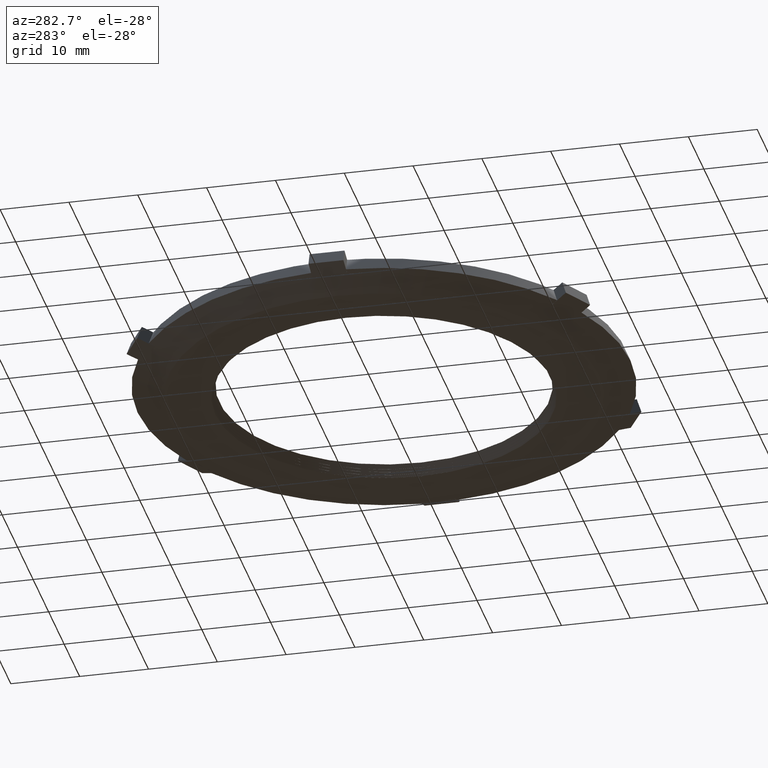
[diagram: clean part render]
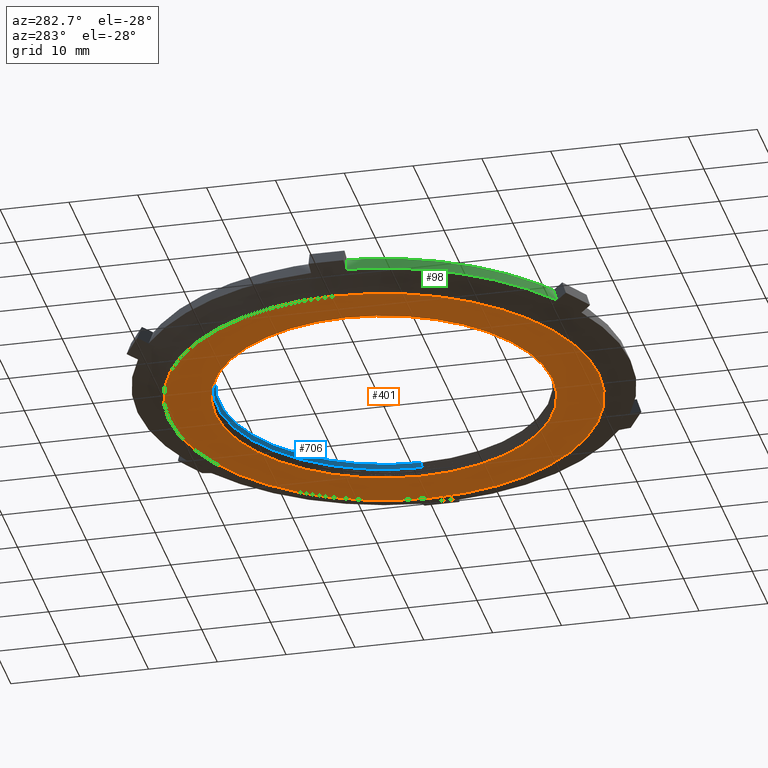
[diagram: same view with three faces highlighted in distinct colors, each labeled with its STEP entity id]
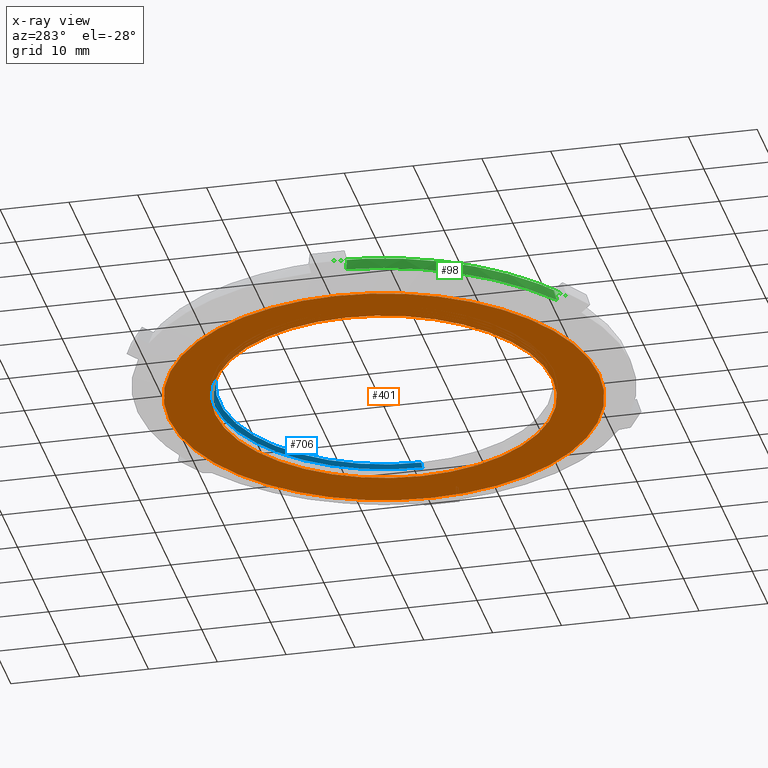
[diagram: x-ray of the same camera — body ghosted, the three highlighted faces saturated]
A machine part, auxiliary view with three faces highlighted in distinct colors.
The next image is the same camera in x-ray (body ghosted, the three faces saturated) — at least one of them is partly hidden behind the body in this view.
Their STEP definitions:

[orange] entity #401 — the highlighted planar face has unit normal (0, 0, 1).
#19 = VERTEX_POINT ( 'NONE', #777 ) ;
#21 = VERTEX_POINT ( 'NONE', #772 ) ;
#24 = EDGE_CURVE ( 'NONE', #19, #21, #769, .T. ) ;
#136 = EDGE_CURVE ( 'NONE', #137, #138, #1035, .T. ) ;
#137 = VERTEX_POINT ( 'NONE', #1067 ) ;
#138 = VERTEX_POINT ( 'NONE', #1083 ) ;
#216 = EDGE_CURVE ( 'NONE', #21, #19, #1601, .T. ) ;
#287 = EDGE_LOOP ( 'NONE', ( #288, #289 ) ) ;
#288 = ORIENTED_EDGE ( 'NONE', *, *, #216, .T. ) ;
#289 = ORIENTED_EDGE ( 'NONE', *, *, #24, .T. ) ;
#401 = ADVANCED_FACE ( 'NONE', ( #1499, #1507 ), #1506, .F. ) ;
#407 = ORIENTED_EDGE ( 'NONE', *, *, #136, .T. ) ;
#411 = ORIENTED_EDGE ( 'NONE', *, *, #443, .T. ) ;
#442 = EDGE_LOOP ( 'NONE', ( #411, #407 ) ) ;
#443 = EDGE_CURVE ( 'NONE', #138, #137, #1674, .T. ) ;
#765 = DIRECTION ( 'NONE',  ( -1.000000000000000000, 0.0000000000000000000, 0.0000000000000000000 ) ) ;
#766 = DIRECTION ( 'NONE',  ( -0.0000000000000000000, -0.0000000000000000000, -1.000000000000000000 ) ) ;
#767 = CARTESIAN_POINT ( 'NONE',  ( 0.0000000000000000000, 0.0000000000000000000, -0.07999999999999996000 ) ) ;
#768 = AXIS2_PLACEMENT_3D ( 'NONE', #767, #766, #765 ) ;
#769 = CIRCLE ( 'NONE', #768, 1.230000000000000000 ) ;
#772 = CARTESIAN_POINT ( 'NONE',  ( 1.230000000000000000, 0.0000000000000000000, -0.07999999999999996000 ) ) ;
#777 = CARTESIAN_POINT ( 'NONE',  ( -1.230000000000000000, 1.616480387045538300E-016, -0.07999999999999996000 ) ) ;
#1034 = AXIS2_PLACEMENT_3D ( 'NONE', #1070, #1069, #1068 ) ;
#1035 = CIRCLE ( 'NONE', #1034, 0.9645183194235996700 ) ;
#1067 = CARTESIAN_POINT ( 'NONE',  ( -0.9645183194235996700, 1.184511712775963700E-016, -0.08000000000000000200 ) ) ;
#1068 = DIRECTION ( 'NONE',  ( 1.000000000000000000, 0.0000000000000000000, 0.0000000000000000000 ) ) ;
#1069 = DIRECTION ( 'NONE',  ( 0.0000000000000000000, 0.0000000000000000000, 1.000000000000000000 ) ) ;
#1070 = CARTESIAN_POINT ( 'NONE',  ( 0.0000000000000000000, 0.0000000000000000000, -0.08000000000000000200 ) ) ;
#1083 = CARTESIAN_POINT ( 'NONE',  ( 0.9645183194235996700, 0.0000000000000000000, -0.08000000000000000200 ) ) ;
#1499 = FACE_BOUND ( 'NONE', #442, .T. ) ;
#1505 = CARTESIAN_POINT ( 'NONE',  ( 0.9400000000000000600, 0.0000000000000000000, -0.08000000000000000200 ) ) ;
#1506 = PLANE ( 'NONE',  #1524 ) ;
#1507 = FACE_OUTER_BOUND ( 'NONE', #287, .T. ) ;
#1522 = DIRECTION ( 'NONE',  ( 1.000000000000000000, 0.0000000000000000000, -0.0000000000000000000 ) ) ;
#1523 = DIRECTION ( 'NONE',  ( 0.0000000000000000000, 0.0000000000000000000, 1.000000000000000000 ) ) ;
#1524 = AXIS2_PLACEMENT_3D ( 'NONE', #1505, #1523, #1522 ) ;
#1601 = CIRCLE ( 'NONE', #1616, 1.230000000000000000 ) ;
#1615 = CARTESIAN_POINT ( 'NONE',  ( 0.0000000000000000000, 0.0000000000000000000, -0.07999999999999996000 ) ) ;
#1616 = AXIS2_PLACEMENT_3D ( 'NONE', #1615, #1636, #1626 ) ;
#1626 = DIRECTION ( 'NONE',  ( -1.000000000000000000, 0.0000000000000000000, 0.0000000000000000000 ) ) ;
#1636 = DIRECTION ( 'NONE',  ( -0.0000000000000000000, -0.0000000000000000000, -1.000000000000000000 ) ) ;
#1639 = DIRECTION ( 'NONE',  ( 0.0000000000000000000, 0.0000000000000000000, 1.000000000000000000 ) ) ;
#1644 = CARTESIAN_POINT ( 'NONE',  ( 0.0000000000000000000, 0.0000000000000000000, -0.08000000000000000200 ) ) ;
#1661 = DIRECTION ( 'NONE',  ( 1.000000000000000000, 0.0000000000000000000, 0.0000000000000000000 ) ) ;
#1670 = AXIS2_PLACEMENT_3D ( 'NONE', #1644, #1639, #1661 ) ;
#1674 = CIRCLE ( 'NONE', #1670, 0.9645183194235996700 ) ;

[blue] entity #706 — the highlighted conical surface has half-angle 60 deg.
#25 = EDGE_CURVE ( 'NONE', #38, #125, #770, .T. ) ;
#32 = EDGE_CURVE ( 'NONE', #38, #40, #761, .T. ) ;
#34 = EDGE_CURVE ( 'NONE', #40, #122, #798, .T. ) ;
#38 = VERTEX_POINT ( 'NONE', #882 ) ;
#40 = VERTEX_POINT ( 'NONE', #881 ) ;
#122 = VERTEX_POINT ( 'NONE', #1126 ) ;
#125 = VERTEX_POINT ( 'NONE', #1096 ) ;
#583 = ORIENTED_EDGE ( 'NONE', *, *, #34, .T. ) ;
#584 = ORIENTED_EDGE ( 'NONE', *, *, #585, .T. ) ;
#585 = EDGE_CURVE ( 'NONE', #122, #125, #1906, .T. ) ;
#598 = EDGE_LOOP ( 'NONE', ( #707, #828, #583, #584 ) ) ;
#706 = ADVANCED_FACE ( 'NONE', ( #1974 ), #1973, .F. ) ;
#707 = ORIENTED_EDGE ( 'NONE', *, *, #25, .F. ) ;
#758 = DIRECTION ( 'NONE',  ( 0.0000000000000000000, 0.0000000000000000000, 1.000000000000000000 ) ) ;
#759 = CARTESIAN_POINT ( 'NONE',  ( 0.0000000000000000000, 0.0000000000000000000, -0.006603193529606679900 ) ) ;
#760 = AXIS2_PLACEMENT_3D ( 'NONE', #759, #758, #800 ) ;
#761 = CIRCLE ( 'NONE', #760, 0.9418854262650979700 ) ;
#762 = DIRECTION ( 'NONE',  ( 0.8660254037844438100, 1.060540212046019900E-016, -0.4999999999999910600 ) ) ;
#763 = VECTOR ( 'NONE', #762, 39.37007874015748100 ) ;
#764 = CARTESIAN_POINT ( 'NONE',  ( 0.9700000000000000800, 1.187868163207706000E-016, -0.02283515024360362500 ) ) ;
#770 = LINE ( 'NONE', #764, #763 ) ;
#795 = DIRECTION ( 'NONE',  ( -0.8660254037844438100, 0.0000000000000000000, -0.4999999999999910600 ) ) ;
#796 = VECTOR ( 'NONE', #795, 39.37007874015748100 ) ;
#797 = CARTESIAN_POINT ( 'NONE',  ( -0.9700000000000000800, 0.0000000000000000000, -0.02283515024360362500 ) ) ;
#798 = LINE ( 'NONE', #797, #796 ) ;
#800 = DIRECTION ( 'NONE',  ( -1.000000000000000000, 0.0000000000000000000, 0.0000000000000000000 ) ) ;
#828 = ORIENTED_EDGE ( 'NONE', *, *, #32, .T. ) ;
#881 = CARTESIAN_POINT ( 'NONE',  ( -0.9418854262650979700, 0.0000000000000000000, -0.006603193529606679900 ) ) ;
#882 = CARTESIAN_POINT ( 'NONE',  ( 0.9418854262650979700, 1.155345940969541800E-016, -0.006603193529606679900 ) ) ;
#1096 = CARTESIAN_POINT ( 'NONE',  ( 0.9700000000000000800, 1.187868163207706000E-016, -0.02283515024360362500 ) ) ;
#1126 = CARTESIAN_POINT ( 'NONE',  ( -0.9700000000000000800, 0.0000000000000000000, -0.02283515024360362500 ) ) ;
#1837 = CARTESIAN_POINT ( 'NONE',  ( 0.0000000000000000000, 0.0000000000000000000, -0.02283515024360362500 ) ) ;
#1903 = DIRECTION ( 'NONE',  ( -1.000000000000000000, 0.0000000000000000000, 0.0000000000000000000 ) ) ;
#1904 = DIRECTION ( 'NONE',  ( -0.0000000000000000000, -0.0000000000000000000, -1.000000000000000000 ) ) ;
#1905 = AXIS2_PLACEMENT_3D ( 'NONE', #1837, #1904, #1903 ) ;
#1906 = CIRCLE ( 'NONE', #1905, 0.9700000000000000800 ) ;
#1970 = DIRECTION ( 'NONE',  ( -0.0000000000000000000, -0.0000000000000000000, -1.000000000000000000 ) ) ;
#1971 = CARTESIAN_POINT ( 'NONE',  ( 0.0000000000000000000, 0.0000000000000000000, -0.02283515024360362500 ) ) ;
#1972 = AXIS2_PLACEMENT_3D ( 'NONE', #1971, #1970, #2033 ) ;
#1973 = CONICAL_SURFACE ( 'NONE', #1972, 0.9700000000000000800, 1.047197551196608100 ) ;
#1974 = FACE_OUTER_BOUND ( 'NONE', #598, .T. ) ;
#2033 = DIRECTION ( 'NONE',  ( -1.000000000000000000, 0.0000000000000000000, 0.0000000000000000000 ) ) ;

[green] entity #98 — the highlighted conical surface has half-angle 20 deg.
#8 = EDGE_CURVE ( 'NONE', #16, #45, #836, .T. ) ;
#16 = VERTEX_POINT ( 'NONE', #782 ) ;
#45 = VERTEX_POINT ( 'NONE', #915 ) ;
#93 = VERTEX_POINT ( 'NONE', #1026 ) ;
#94 = ORIENTED_EDGE ( 'NONE', *, *, #430, .T. ) ;
#98 = ADVANCED_FACE ( 'NONE', ( #1018 ), #1012, .T. ) ;
#105 = ORIENTED_EDGE ( 'NONE', *, *, #255, .F. ) ;
#253 = VERTEX_POINT ( 'NONE', #1266 ) ;
#255 = EDGE_CURVE ( 'NONE', #253, #256, #1272, .T. ) ;
#256 = VERTEX_POINT ( 'NONE', #1304 ) ;
#264 = VERTEX_POINT ( 'NONE', #1303 ) ;
#269 = ORIENTED_EDGE ( 'NONE', *, *, #300, .F. ) ;
#293 = ORIENTED_EDGE ( 'NONE', *, *, #8, .T. ) ;
#300 = EDGE_CURVE ( 'NONE', #93, #45, #1325, .T. ) ;
#301 = ORIENTED_EDGE ( 'NONE', *, *, #419, .F. ) ;
#327 = EDGE_LOOP ( 'NONE', ( #301, #293, #269, #391, #105, #94 ) ) ;
#391 = ORIENTED_EDGE ( 'NONE', *, *, #468, .F. ) ;
#419 = EDGE_CURVE ( 'NONE', #16, #264, #1565, .T. ) ;
#430 = EDGE_CURVE ( 'NONE', #253, #264, #1578, .T. ) ;
#468 = EDGE_CURVE ( 'NONE', #256, #93, #1678, .T. ) ;
#782 = CARTESIAN_POINT ( 'NONE',  ( -0.6914447734302168200, -1.197617478209111800, 0.06000000000000010900 ) ) ;
#832 = DIRECTION ( 'NONE',  ( -1.000000000000000000, 0.0000000000000000000, 0.0000000000000000000 ) ) ;
#833 = DIRECTION ( 'NONE',  ( -0.0000000000000000000, -0.0000000000000000000, -1.000000000000000000 ) ) ;
#834 = CARTESIAN_POINT ( 'NONE',  ( 0.0000000000000000000, 0.0000000000000000000, 0.05999999999999990800 ) ) ;
#835 = AXIS2_PLACEMENT_3D ( 'NONE', #834, #833, #832 ) ;
#836 = CIRCLE ( 'NONE', #835, 1.382889546860454700 ) ;
#915 = CARTESIAN_POINT ( 'NONE',  ( -1.382889546860455000, -9.656671686230743400E-015, 0.05999999999999997700 ) ) ;
#1009 = DIRECTION ( 'NONE',  ( -1.000000000000000000, 0.0000000000000000000, 0.0000000000000000000 ) ) ;
#1010 = DIRECTION ( 'NONE',  ( -0.0000000000000000000, -0.0000000000000000000, -1.000000000000000000 ) ) ;
#1011 = AXIS2_PLACEMENT_3D ( 'NONE', #1017, #1010, #1009 ) ;
#1012 = CONICAL_SURFACE ( 'NONE', #1011, 1.382889546860454700, 0.3490658503988599600 ) ;
#1017 = CARTESIAN_POINT ( 'NONE',  ( 0.0000000000000000000, 0.0000000000000000000, 0.05999999999999990800 ) ) ;
#1018 = FACE_OUTER_BOUND ( 'NONE', #327, .T. ) ;
#1026 = CARTESIAN_POINT ( 'NONE',  ( -1.379693672393242300, -0.1000000000000096200, 0.05883679682148351700 ) ) ;
#1258 = CARTESIAN_POINT ( 'NONE',  ( -1.382889546860455000, -9.656671686230743400E-015, 0.05999999999999997700 ) ) ;
#1259 = CARTESIAN_POINT ( 'NONE',  ( -1.382889546860454100, -0.03336120332220068900, 0.05999999999999976900 ) ) ;
#1266 = CARTESIAN_POINT ( 'NONE',  ( -0.7898272555299983300, -1.168020935780669700, -0.01448535783208473400 ) ) ;
#1272 = CIRCLE ( 'NONE', #1281, 1.409999999999999900 ) ;
#1273 = CARTESIAN_POINT ( 'NONE',  ( 0.0000000000000000000, 0.0000000000000000000, -0.01448535783208477000 ) ) ;
#1277 = CARTESIAN_POINT ( 'NONE',  ( -1.379693672393242300, -0.1000000000000096200, 0.05883679682148351700 ) ) ;
#1279 = DIRECTION ( 'NONE',  ( -1.000000000000000000, 0.0000000000000000000, 0.0000000000000000000 ) ) ;
#1280 = DIRECTION ( 'NONE',  ( -0.0000000000000000000, -0.0000000000000000000, -1.000000000000000000 ) ) ;
#1281 = AXIS2_PLACEMENT_3D ( 'NONE', #1273, #1280, #1279 ) ;
#1282 = CARTESIAN_POINT ( 'NONE',  ( -1.381823899202631700, -0.06670568129703433000, 0.05961213597233686700 ) ) ;
#1303 = CARTESIAN_POINT ( 'NONE',  ( -0.7764493765750547500, -1.144849769733200700, 0.05883679682148348200 ) ) ;
#1304 = CARTESIAN_POINT ( 'NONE',  ( -1.406449430303129600, -0.1000000000000098000, -0.01448535783208478000 ) ) ;
#1325 =( BOUNDED_CURVE ( )  B_SPLINE_CURVE ( 3, ( #1277, #1282, #1259, #1258 ),
 .UNSPECIFIED., .F., .T. ) 
 B_SPLINE_CURVE_WITH_KNOTS ( ( 4, 4 ),
 ( 3.078259682993197600, 3.141592653589793100 ),
 .UNSPECIFIED. ) 
 CURVE ( )  GEOMETRIC_REPRESENTATION_ITEM ( )  RATIONAL_B_SPLINE_CURVE ( ( 1.000000000000000000, 0.9996657725003570400, 0.9996657725003570400, 1.000000000000000000 ) ) 
 REPRESENTATION_ITEM ( '' )  );
#1550 = CARTESIAN_POINT ( 'NONE',  ( -0.7764493765750547500, -1.144849769733200700, 0.05883679682148348200 ) ) ;
#1551 = CARTESIAN_POINT ( 'NONE',  ( -0.7809088651908918700, -1.152573830591605800, 0.03439622138126263700 ) ) ;
#1552 = CARTESIAN_POINT ( 'NONE',  ( -0.7853681544575975600, -1.160297546167186500, 0.009955500442793989800 ) ) ;
#1565 =( BOUNDED_CURVE ( )  B_SPLINE_CURVE ( 3, ( #1584, #1583, #1582, #1581 ),
 .UNSPECIFIED., .F., .T. ) 
 B_SPLINE_CURVE_WITH_KNOTS ( ( 4, 4 ),
 ( 3.141592653589793100, 3.204925624186388600 ),
 .UNSPECIFIED. ) 
 CURVE ( )  GEOMETRIC_REPRESENTATION_ITEM ( )  RATIONAL_B_SPLINE_CURVE ( ( 1.000000000000000000, 0.9996657725003570400, 0.9996657725003570400, 1.000000000000000000 ) ) 
 REPRESENTATION_ITEM ( '' )  );
#1566 = CARTESIAN_POINT ( 'NONE',  ( -0.7898272555299983300, -1.168020935780669700, -0.01448535783208473400 ) ) ;
#1578 = B_SPLINE_CURVE_WITH_KNOTS ( 'NONE', 3,
 ( #1566, #1552, #1551, #1550 ),
 .UNSPECIFIED., .F., .F.,
 ( 4, 4 ),
 ( 2.128984767154283400E-007, 0.001982716490037712500 ),
 .UNSPECIFIED. ) ;
#1581 = CARTESIAN_POINT ( 'NONE',  ( -0.7764493765750547500, -1.144849769733200700, 0.05883679682148348200 ) ) ;
#1582 = CARTESIAN_POINT ( 'NONE',  ( -0.7486807641812764900, -1.163341759617441400, 0.05961213597233666600 ) ) ;
#1583 = CARTESIAN_POINT ( 'NONE',  ( -0.7203364230080512300, -1.180936876548015500, 0.05999999999999963000 ) ) ;
#1584 = CARTESIAN_POINT ( 'NONE',  ( -0.6914447734302168200, -1.197617478209111800, 0.06000000000000010900 ) ) ;
#1678 = B_SPLINE_CURVE_WITH_KNOTS ( 'NONE', 3,
 ( #1683, #1682, #1681, #1680, #1696, #1695, #1694 ),
 .UNSPECIFIED., .F., .F.,
 ( 4, 3, 4 ),
 ( 0.004421218200748940200, 0.004685506497179758200, 0.006403721791877527300 ),
 .UNSPECIFIED. ) ;
#1680 = CARTESIAN_POINT ( 'NONE',  ( -1.402882743569587200, -0.1000000000000097800, -0.004710705254109152900 ) ) ;
#1681 = CARTESIAN_POINT ( 'NONE',  ( -1.404071645873018900, -0.1000000000000097800, -0.007968920325985274400 ) ) ;
#1682 = CARTESIAN_POINT ( 'NONE',  ( -1.405260541433825700, -0.1000000000000098000, -0.01122713785821082500 ) ) ;
#1683 = CARTESIAN_POINT ( 'NONE',  ( -1.406449430303129600, -0.1000000000000098000, -0.01448535783208478000 ) ) ;
#1694 = CARTESIAN_POINT ( 'NONE',  ( -1.379693672393242300, -0.1000000000000096200, 0.05883679682148351700 ) ) ;
#1695 = CARTESIAN_POINT ( 'NONE',  ( -1.387423657428619200, -0.1000000000000096800, 0.03765440364999243100 ) ) ;
#1696 = CARTESIAN_POINT ( 'NONE',  ( -1.395153342954779100, -0.1000000000000097200, 0.01647190117792811700 ) ) ;